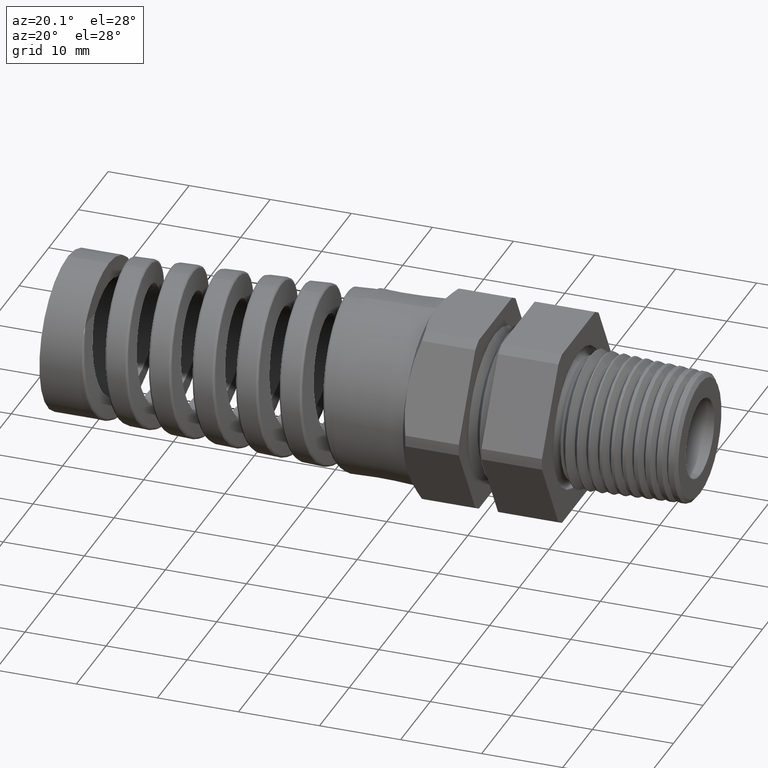
[diagram: clean part render]
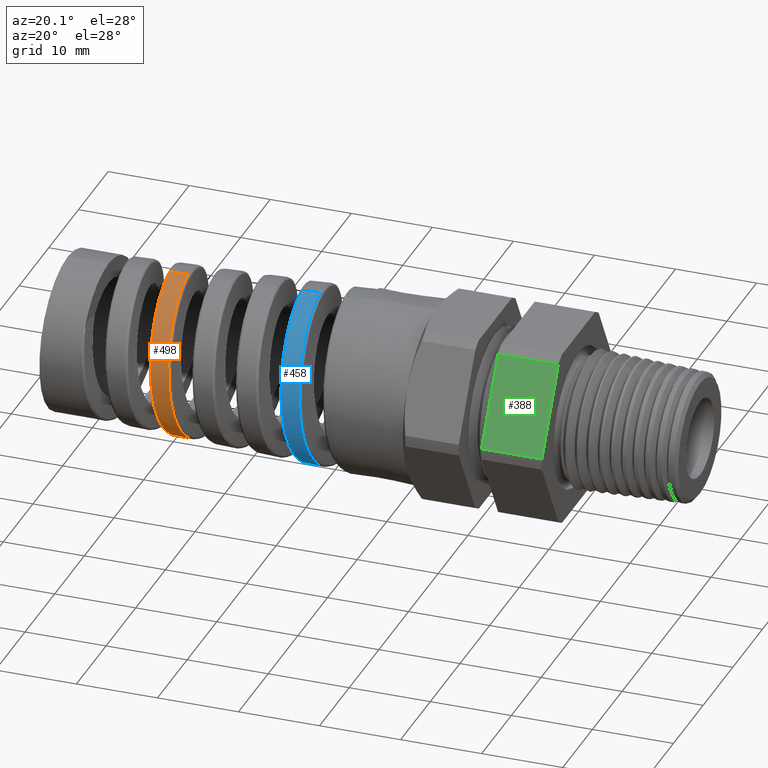
[diagram: same view with three faces highlighted in distinct colors, each labeled with its STEP entity id]
A machine part, auxiliary view with three faces highlighted in distinct colors.
Their STEP definitions:

[orange] entity #498 — the highlighted conical surface has half-angle 2.001 deg.
#33 = VERTEX_POINT ( 'NONE', #9623 ) ;
#96 = VERTEX_POINT ( 'NONE', #2184 ) ;
#97 = EDGE_CURVE ( 'NONE', #96, #33, #2176, .T. ) ;
#103 = VERTEX_POINT ( 'NONE', #2198 ) ;
#469 = ORIENTED_EDGE ( 'NONE', *, *, #472, .T. ) ;
#472 = EDGE_CURVE ( 'NONE', #855, #33, #3338, .T. ) ;
#485 = EDGE_LOOP ( 'NONE', ( #502, #496, #500, #469 ) ) ;
#496 = ORIENTED_EDGE ( 'NONE', *, *, #499, .T. ) ;
#498 = ADVANCED_FACE ( 'NONE', ( #3644 ), #3642, .T. ) ;
#499 = EDGE_CURVE ( 'NONE', #96, #103, #3634, .T. ) ;
#500 = ORIENTED_EDGE ( 'NONE', *, *, #857, .T. ) ;
#502 = ORIENTED_EDGE ( 'NONE', *, *, #97, .F. ) ;
#855 = VERTEX_POINT ( 'NONE', #4031 ) ;
#857 = EDGE_CURVE ( 'NONE', #103, #855, #4025, .T. ) ;
#2173 = DIRECTION ( 'NONE',  ( 0.9993904554178625300, 4.275258673359081200E-018, 0.03491013634572582400 ) ) ;
#2174 = VECTOR ( 'NONE', #2173, 39.37007874015748900 ) ;
#2175 = CARTESIAN_POINT ( 'NONE',  ( -0.6937499999999999800, 5.327213576290986400E-017, 0.4350000000000000000 ) ) ;
#2176 = LINE ( 'NONE', #2175, #2174 ) ;
#2184 = CARTESIAN_POINT ( 'NONE',  ( -1.986840910767689400, -4.649554464821341100E-013, 0.3898304871658553900 ) ) ;
#2198 = CARTESIAN_POINT ( 'NONE',  ( -1.879720266788381000, -2.637984922872576700E-016, -0.3935723642935452000 ) ) ;
#3294 = CARTESIAN_POINT ( 'NONE',  ( -1.883454715896576000, -0.1392066543717424800, 0.3682167110623918400 ) ) ;
#3295 = CARTESIAN_POINT ( 'NONE',  ( -1.881225742746613700, -0.1629931436899944600, 0.3584083534623067100 ) ) ;
#3296 = CARTESIAN_POINT ( 'NONE',  ( -1.880111867976102400, -0.1746551178281306500, 0.3529187087559988400 ) ) ;
#3297 = CARTESIAN_POINT ( 'NONE',  ( -1.877872919384667300, -0.1975069230948133000, 0.3407471303062943300 ) ) ;
#3299 = CARTESIAN_POINT ( 'NONE',  ( -1.876742075347841700, -0.2087502424294269700, 0.3340247738831396100 ) ) ;
#3300 = CARTESIAN_POINT ( 'NONE',  ( -1.873379466521559300, -0.2411045124020121100, 0.3124334295890020000 ) ) ;
#3301 = CARTESIAN_POINT ( 'NONE',  ( -1.871163785896475100, -0.2609997662129701600, 0.2961060191337108200 ) ) ;
#3302 = CARTESIAN_POINT ( 'NONE',  ( -1.866694298839940600, -0.2974924998535752300, 0.2596553026286017600 ) ) ;
#3303 = CARTESIAN_POINT ( 'NONE',  ( -1.864421279842527500, -0.3141834313187411000, 0.2393199861841280900 ) ) ;
#3304 = CARTESIAN_POINT ( 'NONE',  ( -1.859953179994141300, -0.3428224768600658400, 0.1964206713080470000 ) ) ;
#3305 = CARTESIAN_POINT ( 'NONE',  ( -1.857742624103401400, -0.3549591012547717000, 0.1737251273945324400 ) ) ;
#3306 = CARTESIAN_POINT ( 'NONE',  ( -1.854386970029477900, -0.3698358928881783100, 0.1377898406801128500 ) ) ;
#3307 = CARTESIAN_POINT ( 'NONE',  ( -1.853258264555995600, -0.3742417481472958300, 0.1254527756450969400 ) ) ;
#3308 = CARTESIAN_POINT ( 'NONE',  ( -1.851023514690625800, -0.3817368034136366400, 0.1006672498179059400 ) ) ;
#3309 = CARTESIAN_POINT ( 'NONE',  ( -1.849911834063305200, -0.3848548596700294100, 0.08815977452566939300 ) ) ;
#3310 = CARTESIAN_POINT ( 'NONE',  ( -1.846576772055290400, -0.3923565489145042200, 0.05030124091211875300 ) ) ;
#3311 = CARTESIAN_POINT ( 'NONE',  ( -1.844345187904256900, -0.3949054746686075900, 0.02452674820345257200 ) ) ;
#3312 = CARTESIAN_POINT ( 'NONE',  ( -1.839836645306573500, -0.3948622883476570200, -0.02756900176171447500 ) ) ;
#3313 = CARTESIAN_POINT ( 'NONE',  ( -1.837622341986494800, -0.3922884600304917300, -0.05321150722956485100 ) ) ;
#3314 = CARTESIAN_POINT ( 'NONE',  ( -1.834295303261304700, -0.3847340812561507700, -0.09108304038591873200 ) ) ;
#3315 = CARTESIAN_POINT ( 'NONE',  ( -1.833184979641091300, -0.3815958993642941700, -0.1036074343915490800 ) ) ;
#3316 = CARTESIAN_POINT ( 'NONE',  ( -1.830949211507873400, -0.3740480648881974700, -0.1284512005103204700 ) ) ;
#3317 = CARTESIAN_POINT ( 'NONE',  ( -1.829823644968929800, -0.3696291594010123200, -0.1407683453459653600 ) ) ;
#3318 = CARTESIAN_POINT ( 'NONE',  ( -1.826480431029900100, -0.3547513203778108700, -0.1765984125789903400 ) ) ;
#3319 = CARTESIAN_POINT ( 'NONE',  ( -1.824270470732468400, -0.3426106134812008100, -0.1992811321025439700 ) ) ;
#3320 = CARTESIAN_POINT ( 'NONE',  ( -1.820922955699432000, -0.3210823017191422600, -0.2315018876074817800 ) ) ;
#3321 = CARTESIAN_POINT ( 'NONE',  ( -1.819796366054157200, -0.3133083022953142600, -0.2419881625212698700 ) ) ;
#3322 = CARTESIAN_POINT ( 'NONE',  ( -1.817551256550356000, -0.2968034342763216100, -0.2620880590465793400 ) ) ;
#3323 = CARTESIAN_POINT ( 'NONE',  ( -1.816438545054415800, -0.2881167520699249300, -0.2716591601638099200 ) ) ;
#3325 = CARTESIAN_POINT ( 'NONE',  ( -1.813112862020577900, -0.2607924728907167800, -0.2989763004132516800 ) ) ;
#3326 = CARTESIAN_POINT ( 'NONE',  ( -1.810911388090956200, -0.2409025884763978100, -0.3153392603150751400 ) ) ;
#3328 = CARTESIAN_POINT ( 'NONE',  ( -1.807559280633849900, -0.2084928043653283500, -0.3370303284070737500 ) ) ;
#3329 = CARTESIAN_POINT ( 'NONE',  ( -1.806437453984266000, -0.1972914940753829600, -0.3437495435217521900 ) ) ;
#3330 = CARTESIAN_POINT ( 'NONE',  ( -1.804213804035012400, -0.1745090041732777200, -0.3559435842354843300 ) ) ;
#3331 = CARTESIAN_POINT ( 'NONE',  ( -1.801998649766592700, -0.1512361501391031600, -0.3669697829163036700 ) ) ;
#3332 = CARTESIAN_POINT ( 'NONE',  ( -1.799779998109340300, -0.1269974180550421700, -0.3756911355663603600 ) ) ;
#3333 = CARTESIAN_POINT ( 'NONE',  ( -1.797550770460735900, -0.1022692630482041100, -0.3832426220714913500 ) ) ;
#3334 = CARTESIAN_POINT ( 'NONE',  ( -1.796424658331767300, -0.08958927025004835600, -0.3864458897378959000 ) ) ;
#3335 = CARTESIAN_POINT ( 'NONE',  ( -1.793071300515088700, -0.05138693503553575700, -0.3941129385449495000 ) ) ;
#3336 = CARTESIAN_POINT ( 'NONE',  ( -1.790873573879660000, -0.02576588059842881100, -0.3966759062040751100 ) ) ;
#3337 = CARTESIAN_POINT ( 'NONE',  ( -1.788663597406242800, 9.687240628513690600E-013, -0.3967531038394206400 ) ) ;
#3338 = B_SPLINE_CURVE_WITH_KNOTS ( 'NONE', 3,
 ( #3337, #3336, #3335, #3334, #3333, #3332, #3331, #3330, #3329, #3328, #3326, #3325, #3323, #3322, #3321, #3320, #3319, #3318, #3317, #3316, #3315, #3314, #3313, #3312, #3311, #3310, #3309, #3308, #3307, #3306, #3305, #3304, #3303, #3302, #3301, #3300, #3299, #3297, #3296, #3295, #3294, #3376, #3375, #3374, #3373, #3372, #3371 ),
 .UNSPECIFIED., .F., .F.,
 ( 4, 2, 2, 1, 2, 2, 2, 2, 2, 2, 2, 2, 2, 2, 2, 2, 2, 2, 2, 2, 2, 2, 2, 4 ),
 ( 0.2306014730119435300, 0.2325776850770296900, 0.2335657911095727900, 0.2345538971421158600, 0.2355420031746589500, 0.2365301092072020500, 0.2385063212722882100, 0.2394944273048312800, 0.2404825333373743800, 0.2424587454024605400, 0.2434468514350036100, 0.2444349574675467000, 0.2464111695326328700, 0.2483873815977190300, 0.2493754876302621300, 0.2503635936628052000, 0.2523398057278913900, 0.2543160177929775800, 0.2562922298580637100, 0.2572803358906068400, 0.2582684419231499100, 0.2592565479556929700, 0.2602446539882360400, 0.2622208660533222300 ),
 .UNSPECIFIED. ) ;
#3371 = CARTESIAN_POINT ( 'NONE',  ( -1.895793169622201000, -1.670267389647245300E-014, 0.3930109148356696900 ) ) ;
#3372 = CARTESIAN_POINT ( 'NONE',  ( -1.893561974505058000, -0.02574820477515290000, 0.3930888536686152300 ) ) ;
#3373 = CARTESIAN_POINT ( 'NONE',  ( -1.891336928308255900, -0.05140181010586855600, 0.3906608427168938900 ) ) ;
#3374 = CARTESIAN_POINT ( 'NONE',  ( -1.887943456647904300, -0.08972984056797181400, 0.3831334743432528400 ) ) ;
#3375 = CARTESIAN_POINT ( 'NONE',  ( -1.886812971012488600, -0.1023667014093897600, 0.3799893508709459900 ) ) ;
#3376 = CARTESIAN_POINT ( 'NONE',  ( -1.884570487981130200, -0.1270821774815906700, 0.3725353611873941700 ) ) ;
#3565 = CARTESIAN_POINT ( 'NONE',  ( -0.6937499999999999800, 0.0000000000000000000, 0.0000000000000000000 ) ) ;
#3606 = CARTESIAN_POINT ( 'NONE',  ( -1.924208454539421100, -0.3790678221829322800, -0.1032140996065895600 ) ) ;
#3607 = CARTESIAN_POINT ( 'NONE',  ( -1.928701856651786000, -0.3891795428497184000, -0.05255291708051307300 ) ) ;
#3609 = CARTESIAN_POINT ( 'NONE',  ( -1.930919467093146900, -0.3916772310847374000, -0.02711855628780495200 ) ) ;
#3610 = CARTESIAN_POINT ( 'NONE',  ( -1.934260541543954400, -0.3917157067959449700, 0.01117841857178562100 ) ) ;
#3611 = CARTESIAN_POINT ( 'NONE',  ( -1.935376426122208800, -0.3911060557400558600, 0.02396851445635410400 ) ) ;
#3612 = CARTESIAN_POINT ( 'NONE',  ( -1.937619959157007400, -0.3886091544424403200, 0.04959822664535456400 ) ) ;
#3613 = CARTESIAN_POINT ( 'NONE',  ( -1.938747446844868900, -0.3867127542104784000, 0.06243509376957576800 ) ) ;
#3614 = CARTESIAN_POINT ( 'NONE',  ( -1.942093238500386000, -0.3792260338004924700, 0.1001717192287060200 ) ) ;
#3615 = CARTESIAN_POINT ( 'NONE',  ( -1.944299615005217400, -0.3718357222341705500, 0.1245926799352311300 ) ) ;
#3616 = CARTESIAN_POINT ( 'NONE',  ( -1.947645468549587000, -0.3571615213537472400, 0.1601153871941194400 ) ) ;
#3617 = CARTESIAN_POINT ( 'NONE',  ( -1.948772434785734300, -0.3516361645556130300, 0.1718272891721916200 ) ) ;
#3618 = CARTESIAN_POINT ( 'NONE',  ( -1.951021755223280900, -0.3394878542686437500, 0.1945742635443408500 ) ) ;
#3619 = CARTESIAN_POINT ( 'NONE',  ( -1.952139507349490900, -0.3328966260701747800, 0.2055657942417003200 ) ) ;
#3620 = CARTESIAN_POINT ( 'NONE',  ( -1.955487205276424700, -0.3116158494552855900, 0.2374255220264030200 ) ) ;
#3621 = CARTESIAN_POINT ( 'NONE',  ( -1.957711101932097900, -0.2954335874489006400, 0.2571895505339844000 ) ) ;
#3622 = CARTESIAN_POINT ( 'NONE',  ( -1.961085057502829100, -0.2680798672245561800, 0.2845515354171872000 ) ) ;
#3623 = CARTESIAN_POINT ( 'NONE',  ( -1.962211610894215800, -0.2584834448994731700, 0.2932400335895622400 ) ) ;
#3624 = CARTESIAN_POINT ( 'NONE',  ( -1.964443505656819200, -0.2386702134341211800, 0.3094818650808525700 ) ) ;
#3625 = CARTESIAN_POINT ( 'NONE',  ( -1.966665175128755400, -0.2181484331136264700, 0.3246790422413643500 ) ) ;
#3626 = CARTESIAN_POINT ( 'NONE',  ( -1.968890821151667600, -0.1962282430801364800, 0.3378106888972641800 ) ) ;
#3627 = CARTESIAN_POINT ( 'NONE',  ( -1.971130174294846400, -0.1735980167417630300, 0.3498917453643654600 ) ) ;
#3628 = CARTESIAN_POINT ( 'NONE',  ( -1.972263061459082100, -0.1618597308855019300, 0.3554324090330052700 ) ) ;
#3629 = CARTESIAN_POINT ( 'NONE',  ( -1.975640718748729000, -0.1261635131354268700, 0.3701600719903806500 ) ) ;
#3630 = CARTESIAN_POINT ( 'NONE',  ( -1.977868161247956100, -0.1017172222070451500, 0.3775172745488289400 ) ) ;
#3631 = CARTESIAN_POINT ( 'NONE',  ( -1.982341732931417900, -0.05155924883501186700, 0.3874085955952057400 ) ) ;
#3632 = CARTESIAN_POINT ( 'NONE',  ( -1.984606996060478000, -0.02559143485549954600, 0.3899085209979378200 ) ) ;
#3633 = CARTESIAN_POINT ( 'NONE',  ( -1.986840910767689400, -4.649554464821341100E-013, 0.3898304871658553900 ) ) ;
#3634 = B_SPLINE_CURVE_WITH_KNOTS ( 'NONE', 3,
 ( #3633, #3632, #3631, #3630, #3629, #3628, #3627, #3626, #3625, #3624, #3623, #3622, #3621, #3620, #3619, #3618, #3617, #3616, #3615, #3614, #3613, #3612, #3611, #3610, #3609, #3607, #3606, #3691, #3690, #3689, #3688, #3687, #3686, #3685, #3684, #3683, #3682, #3681, #3680, #3679, #3678, #3677, #3676, #3675, #3674 ),
 .UNSPECIFIED., .F., .F.,
 ( 4, 2, 2, 2, 1, 2, 2, 2, 2, 2, 2, 2, 2, 2, 2, 2, 2, 2, 2, 2, 2, 2, 4 ),
 ( 0.08481067301251461700, 0.08677209776535792200, 0.08873352251820122700, 0.08971423489462288000, 0.09069494727104453200, 0.09167565964746618400, 0.09265637202388783700, 0.09461779677673114200, 0.09559850915315279400, 0.09657922152957444700, 0.09854064628241775100, 0.09952135865883940400, 0.1005020710352610600, 0.1024634957881043800, 0.1044249205409476800, 0.1054056329173693300, 0.1063863452937909800, 0.1083477700466342900, 0.1103091947994775900, 0.1122706195523209000, 0.1132513319287425500, 0.1142320443051642000, 0.1161934690580075100 ),
 .UNSPECIFIED. ) ;
#3637 = DIRECTION ( 'NONE',  ( 0.0000000000000000000, 0.0000000000000000000, -1.000000000000000000 ) ) ;
#3638 = DIRECTION ( 'NONE',  ( 1.000000000000000000, 0.0000000000000000000, 0.0000000000000000000 ) ) ;
#3639 = AXIS2_PLACEMENT_3D ( 'NONE', #3565, #3638, #3637 ) ;
#3642 = CONICAL_SURFACE ( 'NONE', #3639, 0.4350000000000000000, 0.03491723117042448000 ) ;
#3644 = FACE_OUTER_BOUND ( 'NONE', #485, .T. ) ;
#3674 = CARTESIAN_POINT ( 'NONE',  ( -1.879720266788381000, -2.637984922872576700E-016, -0.3935723642935452000 ) ) ;
#3675 = CARTESIAN_POINT ( 'NONE',  ( -1.881957141032006000, -0.02585507255468138000, -0.3934942270805971700 ) ) ;
#3676 = CARTESIAN_POINT ( 'NONE',  ( -1.884168384853900400, -0.05135564136120117400, -0.3908844726883661800 ) ) ;
#3677 = CARTESIAN_POINT ( 'NONE',  ( -1.887492305933135900, -0.08888107967548722300, -0.3833386489729796500 ) ) ;
#3678 = CARTESIAN_POINT ( 'NONE',  ( -1.888602249102729700, -0.1012798005846378600, -0.3802137260116527600 ) ) ;
#3679 = CARTESIAN_POINT ( 'NONE',  ( -1.890834647676927800, -0.1258524756162786000, -0.3727196024805656300 ) ) ;
#3680 = CARTESIAN_POINT ( 'NONE',  ( -1.891962068167354100, -0.1380785641958967300, -0.3683235574222433200 ) ) ;
#3681 = CARTESIAN_POINT ( 'NONE',  ( -1.895305613759604900, -0.1736720239340725500, -0.3535103636288848300 ) ) ;
#3682 = CARTESIAN_POINT ( 'NONE',  ( -1.897503908303853000, -0.1961619457425234100, -0.3414461879581171500 ) ) ;
#3683 = CARTESIAN_POINT ( 'NONE',  ( -1.901935714361021800, -0.2386893991438394600, -0.3130027762348830400 ) ) ;
#3684 = CARTESIAN_POINT ( 'NONE',  ( -1.904187429946195200, -0.2588490017364623000, -0.2964427926086705700 ) ) ;
#3685 = CARTESIAN_POINT ( 'NONE',  ( -1.908632726814921200, -0.2949973149473699200, -0.2602609852079286700 ) ) ;
#3686 = CARTESIAN_POINT ( 'NONE',  ( -1.910845874558054300, -0.3112009691800537400, -0.2405407905456757600 ) ) ;
#3687 = CARTESIAN_POINT ( 'NONE',  ( -1.914203271689432200, -0.3326486026048385800, -0.2084772316795693600 ) ) ;
#3688 = CARTESIAN_POINT ( 'NONE',  ( -1.915331036608786600, -0.3393296094456848000, -0.1973368288556527600 ) ) ;
#3689 = CARTESIAN_POINT ( 'NONE',  ( -1.917560673231278000, -0.3514359613713011200, -0.1746942084547462600 ) ) ;
#3690 = CARTESIAN_POINT ( 'NONE',  ( -1.918668531048749000, -0.3569013799628933900, -0.1631389127557713000 ) ) ;
#3691 = CARTESIAN_POINT ( 'NONE',  ( -1.921989657633687500, -0.3715657921123830500, -0.1277852763536336500 ) ) ;
#4022 = DIRECTION ( 'NONE',  ( 0.9993904554178625300, 0.0000000000000000000, -0.03491013634572582400 ) ) ;
#4023 = VECTOR ( 'NONE', #4022, 39.37007874015748900 ) ;
#4024 = CARTESIAN_POINT ( 'NONE',  ( -0.6937499999999999800, 0.0000000000000000000, -0.4350000000000000000 ) ) ;
#4025 = LINE ( 'NONE', #4024, #4023 ) ;
#4031 = CARTESIAN_POINT ( 'NONE',  ( -1.788663597406242800, 9.687240628513690600E-013, -0.3967531038394206400 ) ) ;
#9623 = CARTESIAN_POINT ( 'NONE',  ( -1.895793169622201000, -1.670267389647245300E-014, 0.3930109148356696900 ) ) ;

[blue] entity #458 — the highlighted conical surface has half-angle 2.001 deg.
#34 = VERTEX_POINT ( 'NONE', #9622 ) ;
#48 = EDGE_CURVE ( 'NONE', #72, #34, #1846, .T. ) ;
#72 = VERTEX_POINT ( 'NONE', #1903 ) ;
#438 = ORIENTED_EDGE ( 'NONE', *, *, #439, .T. ) ;
#439 = EDGE_CURVE ( 'NONE', #34, #573, #3080, .T. ) ;
#455 = ORIENTED_EDGE ( 'NONE', *, *, #457, .T. ) ;
#456 = ORIENTED_EDGE ( 'NONE', *, *, #571, .F. ) ;
#457 = EDGE_CURVE ( 'NONE', #572, #72, #3160, .T. ) ;
#458 = ADVANCED_FACE ( 'NONE', ( #3203 ), #3202, .T. ) ;
#459 = ORIENTED_EDGE ( 'NONE', *, *, #48, .T. ) ;
#460 = EDGE_LOOP ( 'NONE', ( #456, #455, #459, #438 ) ) ;
#571 = EDGE_CURVE ( 'NONE', #572, #573, #3886, .T. ) ;
#572 = VERTEX_POINT ( 'NONE', #3911 ) ;
#573 = VERTEX_POINT ( 'NONE', #3910 ) ;
#1603 = CARTESIAN_POINT ( 'NONE',  ( -1.248148505460138700, -0.1331972192334757200, -0.3939460055143324500 ) ) ;
#1617 = CARTESIAN_POINT ( 'NONE',  ( -1.241441981598904400, -0.05389556880149364700, -0.4132645780015873900 ) ) ;
#1622 = CARTESIAN_POINT ( 'NONE',  ( -1.237032468506627200, -3.257586142387785900E-014, -0.4160223672369586800 ) ) ;
#1623 = CARTESIAN_POINT ( 'NONE',  ( -1.239240850742524100, -0.02700232676120595600, -0.4159452252905423400 ) ) ;
#1643 = CARTESIAN_POINT ( 'NONE',  ( -1.255937983610950800, -0.2187453045968753000, -0.3533568839373796800 ) ) ;
#1644 = CARTESIAN_POINT ( 'NONE',  ( -1.254813485032869200, -0.2069677869014153700, -0.3604258379293198700 ) ) ;
#1645 = CARTESIAN_POINT ( 'NONE',  ( -1.252586045184687700, -0.1830329770464391700, -0.3732372270081993900 ) ) ;
#1646 = CARTESIAN_POINT ( 'NONE',  ( -1.249257546202972000, -0.1458995361676788700, -0.3893774887242381600 ) ) ;
#1647 = CARTESIAN_POINT ( 'NONE',  ( -1.251476436911319200, -0.1708173994416699000, -0.3790230872383003600 ) ) ;
#1664 = CARTESIAN_POINT ( 'NONE',  ( -1.259281742723826500, -0.2526562473744583500, -0.3306561459621296100 ) ) ;
#1701 = CARTESIAN_POINT ( 'NONE',  ( -1.244802694966860200, -0.09406027121044292800, -0.4052011584933571900 ) ) ;
#1703 = CARTESIAN_POINT ( 'NONE',  ( -1.245923071177051300, -0.1073015378957628400, -0.4018531588396861400 ) ) ;
#1843 = DIRECTION ( 'NONE',  ( 0.9993904554178625300, 0.0000000000000000000, -0.03491013634572582400 ) ) ;
#1844 = VECTOR ( 'NONE', #1843, 39.37007874015748900 ) ;
#1845 = CARTESIAN_POINT ( 'NONE',  ( -0.6937499999999999800, 0.0000000000000000000, -0.4350000000000000000 ) ) ;
#1846 = LINE ( 'NONE', #1845, #1844 ) ;
#1903 = CARTESIAN_POINT ( 'NONE',  ( -1.237032468506627200, -3.257586142387785900E-014, -0.4160223672369586800 ) ) ;
#3050 = CARTESIAN_POINT ( 'NONE',  ( -1.212765613889649900, -0.3862717933949407800, 0.1585182839472782400 ) ) ;
#3051 = CARTESIAN_POINT ( 'NONE',  ( -1.210545355784481400, -0.3954347536723654100, 0.1329017885069552500 ) ) ;
#3052 = CARTESIAN_POINT ( 'NONE',  ( -1.208313461122959800, -0.4033534876675156600, 0.1067825503572755600 ) ) ;
#3053 = CARTESIAN_POINT ( 'NONE',  ( -1.207186358122521300, -0.4067026819133640600, 0.09340742524349200700 ) ) ;
#3054 = CARTESIAN_POINT ( 'NONE',  ( -1.203809983415670800, -0.4147186570212358900, 0.05296624870402628900 ) ) ;
#3055 = CARTESIAN_POINT ( 'NONE',  ( -1.201588161530633000, -0.4173454305833727600, 0.02587661860647390600 ) ) ;
#3056 = CARTESIAN_POINT ( 'NONE',  ( -1.198251904804137600, -0.4173313509509885600, -0.01494155728086605400 ) ) ;
#3057 = CARTESIAN_POINT ( 'NONE',  ( -1.197139238576010700, -0.4166628620909524900, -0.02857845956479204300 ) ) ;
#3058 = CARTESIAN_POINT ( 'NONE',  ( -1.194899355645506800, -0.4139608102539527600, -0.05591459434628306300 ) ) ;
#3059 = CARTESIAN_POINT ( 'NONE',  ( -1.193776033449083500, -0.4119235991199445800, -0.06956611779785562600 ) ) ;
#3060 = CARTESIAN_POINT ( 'NONE',  ( -1.190438542776022500, -0.4039016835463021800, -0.1097288590262668600 ) ) ;
#3061 = CARTESIAN_POINT ( 'NONE',  ( -1.188233086433146700, -0.3960013947927347200, -0.1357392801762157300 ) ) ;
#3062 = CARTESIAN_POINT ( 'NONE',  ( -1.184885886082891900, -0.3803193749308381700, -0.1736010334095068600 ) ) ;
#3063 = CARTESIAN_POINT ( 'NONE',  ( -1.183757490047416400, -0.3744108943284254500, -0.1860947413694517500 ) ) ;
#3064 = CARTESIAN_POINT ( 'NONE',  ( -1.181513328473420300, -0.3614652256651195700, -0.2102930920554470800 ) ) ;
#3065 = CARTESIAN_POINT ( 'NONE',  ( -1.180398487183057500, -0.3544420990467778700, -0.2219918439160483700 ) ) ;
#3066 = CARTESIAN_POINT ( 'NONE',  ( -1.177063422544334400, -0.3317654723932013100, -0.2559173910921767600 ) ) ;
#3067 = CARTESIAN_POINT ( 'NONE',  ( -1.174856686829731900, -0.3145197187028634400, -0.2769848166038035300 ) ) ;
#3068 = CARTESIAN_POINT ( 'NONE',  ( -1.171499584402725600, -0.2853560460485328200, -0.3061791306917013300 ) ) ;
#3069 = CARTESIAN_POINT ( 'NONE',  ( -1.170381556414859400, -0.2751574246374542400, -0.3154229703308612000 ) ) ;
#3070 = CARTESIAN_POINT ( 'NONE',  ( -1.168162214033334100, -0.2540755409107072800, -0.3327367565454048500 ) ) ;
#3071 = CARTESIAN_POINT ( 'NONE',  ( -1.165951170476774000, -0.2322360093709418000, -0.3489506047297878400 ) ) ;
#3072 = CARTESIAN_POINT ( 'NONE',  ( -1.163733886066545400, -0.2088990249026221000, -0.3629872112808431600 ) ) ;
#3073 = CARTESIAN_POINT ( 'NONE',  ( -1.161503067461413500, -0.1848007709338399500, -0.3759154638896950500 ) ) ;
#3074 = CARTESIAN_POINT ( 'NONE',  ( -1.160374857548572200, -0.1723013595842416100, -0.3818505741531061400 ) ) ;
#3075 = CARTESIAN_POINT ( 'NONE',  ( -1.157018683825741900, -0.1343368816949028800, -0.3976341007097615700 ) ) ;
#3076 = CARTESIAN_POINT ( 'NONE',  ( -1.154812149313228600, -0.1083221451581488500, -0.4055624615345253000 ) ) ;
#3077 = CARTESIAN_POINT ( 'NONE',  ( -1.150384571834276400, -0.05491503290036717900, -0.4163274362730549100 ) ) ;
#3078 = CARTESIAN_POINT ( 'NONE',  ( -1.148140134163406800, -0.02726168428709760000, -0.4191275034679574100 ) ) ;
#3079 = CARTESIAN_POINT ( 'NONE',  ( -1.145925588030059600, 3.176476777579278900E-013, -0.4192048607280945400 ) ) ;
#3080 = B_SPLINE_CURVE_WITH_KNOTS ( 'NONE', 3,
 ( #3079, #3078, #3077, #3076, #3075, #3074, #3073, #3072, #3071, #3070, #3069, #3068, #3067, #3066, #3065, #3064, #3063, #3062, #3061, #3060, #3059, #3058, #3057, #3056, #3055, #3054, #3053, #3052, #3051, #3050, #3122, #3121, #3120, #3119, #3118, #3117, #3116, #3115, #3114, #3112, #3111, #3110, #3109, #3108, #3107, #3106 ),
 .UNSPECIFIED., .F., .F.,
 ( 4, 2, 2, 2, 1, 2, 2, 2, 2, 2, 2, 2, 2, 2, 2, 1, 2, 2, 2, 2, 2, 2, 2, 4 ),
 ( 0.03460004849513329700, 0.03668840580810209300, 0.03877676312107088100, 0.03982094177755528300, 0.04086512043403967700, 0.04190929909052407100, 0.04295347774700846600, 0.04504183505997725500, 0.04608601371646164900, 0.04713019237294604300, 0.04921854968591482500, 0.05026272834239921300, 0.05130690699888360700, 0.05339526431185238900, 0.05443944296833677600, 0.05548362162482116400, 0.05652780028130555800, 0.05757197893778994600, 0.05966033625075872800, 0.06174869356372750300, 0.06383705087669627700, 0.06488122953318066500, 0.06592540818966505200, 0.06801376550263382700 ),
 .UNSPECIFIED. ) ;
#3106 = CARTESIAN_POINT ( 'NONE',  ( -1.253051083625443800, 2.633166509300577100E-016, 0.4154628141265241400 ) ) ;
#3107 = CARTESIAN_POINT ( 'NONE',  ( -1.250789337175703300, -0.02754961539710985500, 0.4155418201611644800 ) ) ;
#3108 = CARTESIAN_POINT ( 'NONE',  ( -1.248554056720344800, -0.05472517632326383300, 0.4128974646981662400 ) ) ;
#3109 = CARTESIAN_POINT ( 'NONE',  ( -1.245201011995132400, -0.09474246704894959100, 0.4050258711738736700 ) ) ;
#3110 = CARTESIAN_POINT ( 'NONE',  ( -1.244082775796359700, -0.1079680050746364800, 0.4017463295713634100 ) ) ;
#3111 = CARTESIAN_POINT ( 'NONE',  ( -1.241837681395553600, -0.1341865381776552200, 0.3938481896737732700 ) ) ;
#3112 = CARTESIAN_POINT ( 'NONE',  ( -1.240705588152579500, -0.1472277093656847700, 0.3892032575510092600 ) ) ;
#3114 = CARTESIAN_POINT ( 'NONE',  ( -1.237345962373826500, -0.1851763417158952000, 0.3735297058464192600 ) ) ;
#3115 = CARTESIAN_POINT ( 'NONE',  ( -1.235134276539550500, -0.2091627581838106100, 0.3607272632353663000 ) ) ;
#3116 = CARTESIAN_POINT ( 'NONE',  ( -1.230669526812094800, -0.2545352282494742200, 0.3304766954066057900 ) ) ;
#3117 = CARTESIAN_POINT ( 'NONE',  ( -1.228400580549626800, -0.2760267674130078000, 0.3128522693349211100 ) ) ;
#3118 = CARTESIAN_POINT ( 'NONE',  ( -1.223929618201991900, -0.3145426617960814200, 0.2743361033035315900 ) ) ;
#3119 = CARTESIAN_POINT ( 'NONE',  ( -1.221708493765531600, -0.3318131387829840700, 0.2533229513182384500 ) ) ;
#3120 = CARTESIAN_POINT ( 'NONE',  ( -1.218345219013649000, -0.3546729685298121200, 0.2191193884643004000 ) ) ;
#3121 = CARTESIAN_POINT ( 'NONE',  ( -1.217217066717289000, -0.3617787554818573900, 0.2072533085296920900 ) ) ;
#3122 = CARTESIAN_POINT ( 'NONE',  ( -1.214985344981986700, -0.3746501831044091700, 0.1831393458928080900 ) ) ;
#3123 = CARTESIAN_POINT ( 'NONE',  ( -1.261482206538985500, -0.2735080182838728300, -0.3135112639609148900 ) ) ;
#3124 = CARTESIAN_POINT ( 'NONE',  ( -1.265921543121070200, -0.3117553385195434600, -0.2752740804788798600 ) ) ;
#3125 = CARTESIAN_POINT ( 'NONE',  ( -1.268180969095434400, -0.3292607371768889200, -0.2539486321561348900 ) ) ;
#3126 = CARTESIAN_POINT ( 'NONE',  ( -1.272638864705177000, -0.3593216305268697200, -0.2089528731914611100 ) ) ;
#3127 = CARTESIAN_POINT ( 'NONE',  ( -1.274851880974660700, -0.3720633366074505000, -0.1851611476273497000 ) ) ;
#3128 = CARTESIAN_POINT ( 'NONE',  ( -1.278200561128090900, -0.3876928141812554500, -0.1475096116089406600 ) ) ;
#3129 = CARTESIAN_POINT ( 'NONE',  ( -1.279327097202807900, -0.3923288456595425100, -0.1345740991506035300 ) ) ;
#3130 = CARTESIAN_POINT ( 'NONE',  ( -1.281557584167086100, -0.4002241050231908900, -0.1085734098971787600 ) ) ;
#3131 = CARTESIAN_POINT ( 'NONE',  ( -1.282666423019122500, -0.4035111102341155700, -0.09545517966543151700 ) ) ;
#3132 = CARTESIAN_POINT ( 'NONE',  ( -1.285992085871956700, -0.4114294945364978500, -0.05575534326072441300 ) ) ;
#3133 = CARTESIAN_POINT ( 'NONE',  ( -1.288212621322049100, -0.4141372312798336000, -0.02877835168868085300 ) ) ;
#3134 = CARTESIAN_POINT ( 'NONE',  ( -1.292722418679042300, -0.4141693938856497200, 0.02590494283679625800 ) ) ;
#3135 = CARTESIAN_POINT ( 'NONE',  ( -1.294946263515280400, -0.4115038336444485400, 0.05280973355680245600 ) ) ;
#3136 = CARTESIAN_POINT ( 'NONE',  ( -1.298282954276389200, -0.4036322390870094600, 0.09253210023255675800 ) ) ;
#3137 = CARTESIAN_POINT ( 'NONE',  ( -1.299395421320845400, -0.4003580909381347400, 0.1056663020006283100 ) ) ;
#3138 = CARTESIAN_POINT ( 'NONE',  ( -1.301634015826646400, -0.3924772137847534200, 0.1317151782132742800 ) ) ;
#3139 = CARTESIAN_POINT ( 'NONE',  ( -1.302761791545617800, -0.3878543639756253400, 0.1446465283761619600 ) ) ;
#3140 = CARTESIAN_POINT ( 'NONE',  ( -1.306110191589094500, -0.3722785233347036300, 0.1822579552514363400 ) ) ;
#3141 = CARTESIAN_POINT ( 'NONE',  ( -1.308321124627309900, -0.3595596388716448300, 0.2060566361434562300 ) ) ;
#3142 = CARTESIAN_POINT ( 'NONE',  ( -1.311674255829810900, -0.3370001247768717500, 0.2398464187860735500 ) ) ;
#3143 = CARTESIAN_POINT ( 'NONE',  ( -1.312802933072685600, -0.3288572964954182800, 0.2508355442203769000 ) ) ;
#3144 = CARTESIAN_POINT ( 'NONE',  ( -1.315059227539262700, -0.3115378446576003200, 0.2719275792895560800 ) ) ;
#3145 = CARTESIAN_POINT ( 'NONE',  ( -1.316179636785762100, -0.3024220258667269500, 0.2819668531385375900 ) ) ;
#3146 = CARTESIAN_POINT ( 'NONE',  ( -1.319530155495290700, -0.2737472528713044100, 0.3106084887388870800 ) ) ;
#3147 = CARTESIAN_POINT ( 'NONE',  ( -1.321745647235226300, -0.2528734099121610600, 0.3277489838942043200 ) ) ;
#3148 = CARTESIAN_POINT ( 'NONE',  ( -1.325114746377110700, -0.2188583611752539000, 0.3504437343880594200 ) ) ;
#3149 = CARTESIAN_POINT ( 'NONE',  ( -1.326242526704403600, -0.2070932650530717100, 0.3574738166795017900 ) ) ;
#3151 = CARTESIAN_POINT ( 'NONE',  ( -1.328477137816142400, -0.1831693598635969800, 0.3702157213805311000 ) ) ;
#3152 = CARTESIAN_POINT ( 'NONE',  ( -1.330702812760217000, -0.1587317212404532300, 0.3817226819780096300 ) ) ;
#3153 = CARTESIAN_POINT ( 'NONE',  ( -1.332933776146159700, -0.1332820207145897500, 0.3907918327736025800 ) ) ;
#3154 = CARTESIAN_POINT ( 'NONE',  ( -1.335177953442812800, -0.1073192808681043000, 0.3986229183265077600 ) ) ;
#3155 = CARTESIAN_POINT ( 'NONE',  ( -1.336312989668070800, -0.09400576252445190500, 0.4019322384323514300 ) ) ;
#3156 = CARTESIAN_POINT ( 'NONE',  ( -1.339698357628275300, -0.05391032830171793600, 0.4098039231373129000 ) ) ;
#3157 = CARTESIAN_POINT ( 'NONE',  ( -1.341922494994004100, -0.02702787400109098900, 0.4123584087649385100 ) ) ;
#3158 = CARTESIAN_POINT ( 'NONE',  ( -1.344154340895779500, -5.066929239188555700E-014, 0.4122804471991581300 ) ) ;
#3160 = B_SPLINE_CURVE_WITH_KNOTS ( 'NONE', 3,
 ( #3158, #3157, #3156, #3155, #3154, #3153, #3152, #3151, #3149, #3148, #3147, #3146, #3145, #3144, #3143, #3142, #3141, #3140, #3139, #3138, #3137, #3136, #3135, #3134, #3133, #3132, #3131, #3130, #3129, #3128, #3127, #3126, #3125, #3124, #3123, #1664, #1643, #1644, #1645, #1647, #1646, #1603, #1703, #1701, #1617, #1623, #1622 ),
 .UNSPECIFIED., .F., .F.,
 ( 4, 2, 2, 1, 2, 2, 2, 2, 2, 2, 2, 2, 2, 2, 2, 2, 2, 2, 2, 2, 2, 2, 2, 4 ),
 ( 0.2776256053732886200, 0.2797002192775607800, 0.2807375262296968900, 0.2817748331818329400, 0.2828121401339690500, 0.2838494470861051600, 0.2859240609903773200, 0.2869613679425133700, 0.2879986748946494800, 0.2900732887989216400, 0.2911105957510577400, 0.2921479027031938000, 0.2942225166074660100, 0.2962971305117381700, 0.2973344374638742800, 0.2983717444160103300, 0.3004463583202825500, 0.3025209722245547100, 0.3045955861288269200, 0.3056328930809629800, 0.3066702000330990800, 0.3077075069852351900, 0.3087448139373713000, 0.3108194278416434600 ),
 .UNSPECIFIED. ) ;
#3197 = DIRECTION ( 'NONE',  ( 0.0000000000000000000, 0.0000000000000000000, -1.000000000000000000 ) ) ;
#3198 = DIRECTION ( 'NONE',  ( 1.000000000000000000, 0.0000000000000000000, 0.0000000000000000000 ) ) ;
#3199 = AXIS2_PLACEMENT_3D ( 'NONE', #3201, #3198, #3197 ) ;
#3201 = CARTESIAN_POINT ( 'NONE',  ( -0.6937499999999999800, 0.0000000000000000000, 0.0000000000000000000 ) ) ;
#3202 = CONICAL_SURFACE ( 'NONE', #3199, 0.4350000000000000000, 0.03491723117042448000 ) ;
#3203 = FACE_OUTER_BOUND ( 'NONE', #460, .T. ) ;
#3886 = LINE ( 'NONE', #3914, #3913 ) ;
#3910 = CARTESIAN_POINT ( 'NONE',  ( -1.253051083625443800, 2.633166509300577100E-016, 0.4154628141265241400 ) ) ;
#3911 = CARTESIAN_POINT ( 'NONE',  ( -1.344154340895779500, -5.066929239188555700E-014, 0.4122804471991581300 ) ) ;
#3912 = DIRECTION ( 'NONE',  ( 0.9993904554178625300, 4.275258673359081200E-018, 0.03491013634572582400 ) ) ;
#3913 = VECTOR ( 'NONE', #3912, 39.37007874015748900 ) ;
#3914 = CARTESIAN_POINT ( 'NONE',  ( -0.6937499999999999800, 5.327213576290986400E-017, 0.4350000000000000000 ) ) ;
#9622 = CARTESIAN_POINT ( 'NONE',  ( -1.145925588030059600, 3.176476777579278900E-013, -0.4192048607280945400 ) ) ;

[green] entity #388 — the highlighted planar face has unit normal (0, -0.866, 0.5).
#340 = EDGE_CURVE ( 'NONE', #9349, #1722, #2884, .T. ) ;
#353 = EDGE_LOOP ( 'NONE', ( #357, #363, #354, #355 ) ) ;
#354 = ORIENTED_EDGE ( 'NONE', *, *, #1716, .F. ) ;
#355 = ORIENTED_EDGE ( 'NONE', *, *, #340, .F. ) ;
#357 = ORIENTED_EDGE ( 'NONE', *, *, #9348, .T. ) ;
#363 = ORIENTED_EDGE ( 'NONE', *, *, #9464, .T. ) ;
#388 = ADVANCED_FACE ( 'NONE', ( #2944 ), #3013, .T. ) ;
#1716 = EDGE_CURVE ( 'NONE', #1722, #1720, #9990, .T. ) ;
#1720 = VERTEX_POINT ( 'NONE', #10042 ) ;
#1722 = VERTEX_POINT ( 'NONE', #10039 ) ;
#2881 = DIRECTION ( 'NONE',  ( 1.000000000000000000, 0.0000000000000000000, 0.0000000000000000000 ) ) ;
#2882 = VECTOR ( 'NONE', #2881, 39.37007874015748100 ) ;
#2883 = CARTESIAN_POINT ( 'NONE',  ( -2.085539792128106900, -0.2670182247938398000, 0.4075108681102215200 ) ) ;
#2884 = LINE ( 'NONE', #2883, #2882 ) ;
#2944 = FACE_OUTER_BOUND ( 'NONE', #353, .T. ) ;
#3009 = DIRECTION ( 'NONE',  ( 0.0000000000000000000, -0.5000000000000001100, -0.8660254037844384900 ) ) ;
#3010 = DIRECTION ( 'NONE',  ( 0.0000000000000000000, -0.8660254037844386000, 0.5000000000000002200 ) ) ;
#3011 = CARTESIAN_POINT ( 'NONE',  ( -2.085539792128106900, -0.2670182247938399100, 0.4075108681102214700 ) ) ;
#3012 = AXIS2_PLACEMENT_3D ( 'NONE', #3011, #3010, #3009 ) ;
#3013 = PLANE ( 'NONE',  #3012 ) ;
#7150 = CARTESIAN_POINT ( 'NONE',  ( -0.2935323383084577100, -0.2670182247938398000, 0.4075108681102215200 ) ) ;
#7151 = DIRECTION ( 'NONE',  ( 0.0000000000000000000, -0.5000000000000001100, -0.8660254037844384900 ) ) ;
#7152 = VECTOR ( 'NONE', #7151, 39.37007874015748900 ) ;
#7153 = CARTESIAN_POINT ( 'NONE',  ( -0.2935323383084577100, -0.2866210506462308300, 0.3735577777619560300 ) ) ;
#7154 = LINE ( 'NONE', #7153, #7152 ) ;
#7155 = CARTESIAN_POINT ( 'NONE',  ( -0.2935323383084577100, -0.4864238764986216800, 0.02748913188977850100 ) ) ;
#7372 = DIRECTION ( 'NONE',  ( 1.000000000000000000, 0.0000000000000000000, 0.0000000000000000000 ) ) ;
#7373 = VECTOR ( 'NONE', #7372, 39.37007874015748100 ) ;
#7374 = CARTESIAN_POINT ( 'NONE',  ( -2.085539792128106900, -0.4864238764986216800, 0.02748913188977850100 ) ) ;
#7375 = LINE ( 'NONE', #7374, #7373 ) ;
#9346 = VERTEX_POINT ( 'NONE', #7155 ) ;
#9348 = EDGE_CURVE ( 'NONE', #9349, #9346, #7154, .T. ) ;
#9349 = VERTEX_POINT ( 'NONE', #7150 ) ;
#9464 = EDGE_CURVE ( 'NONE', #9346, #1720, #7375, .T. ) ;
#9987 = DIRECTION ( 'NONE',  ( 0.0000000000000000000, -0.5000000000000001100, -0.8660254037844386000 ) ) ;
#9988 = VECTOR ( 'NONE', #9987, 39.37007874015748900 ) ;
#9989 = CARTESIAN_POINT ( 'NONE',  ( 0.0000000000000000000, -0.2670182247938399100, 0.4075108681102214700 ) ) ;
#9990 = LINE ( 'NONE', #9989, #9988 ) ;
#10039 = CARTESIAN_POINT ( 'NONE',  ( 0.0000000000000000000, -0.2670182247938398000, 0.4075108681102215200 ) ) ;
#10042 = CARTESIAN_POINT ( 'NONE',  ( 0.0000000000000000000, -0.4864238764986216800, 0.02748913188977850100 ) ) ;